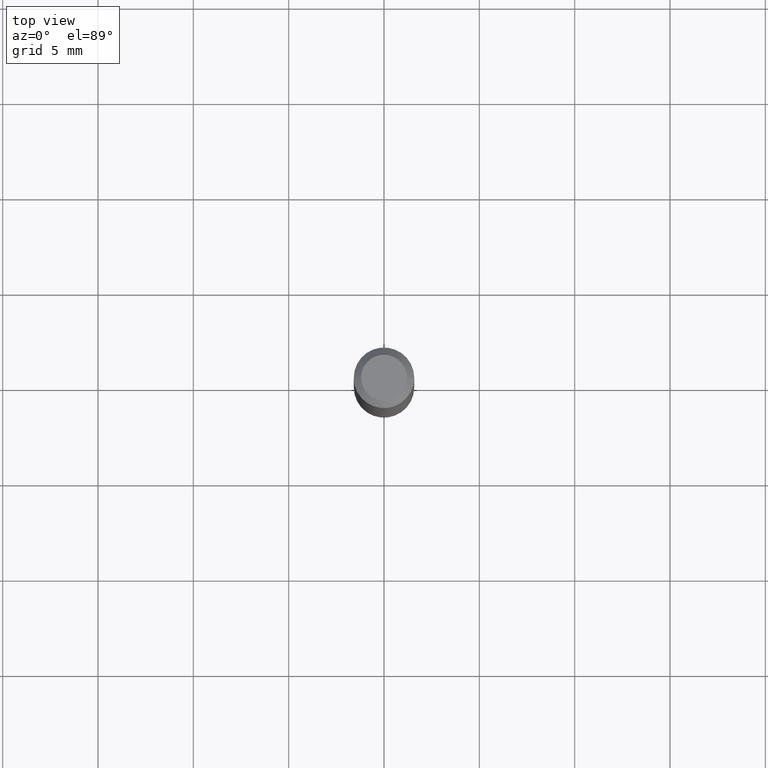
[diagram: clean part render]
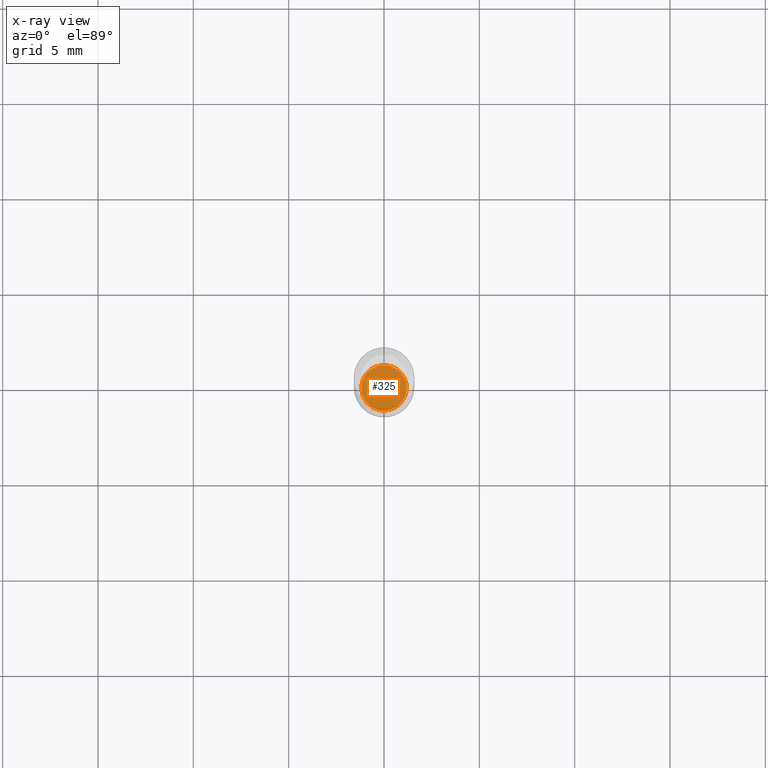
[diagram: x-ray — body ghosted, one internal face saturated and labeled with its STEP entity id]
A machine part, top view, then the same camera in x-ray: the body is ghosted and one INTERNAL B-rep face — a face not visible from any outside direction — is saturated and labeled: STEP entity #325.
In plain terms, the highlighted planar face has unit normal (-0, 0, 1).
Its self-contained STEP definition (entity closure, byte-faithful):
#6 = VERTEX_POINT ( 'NONE', #428 ) ;
#69 = CARTESIAN_POINT ( 'NONE',  ( 2.971244599514941458E-29, -4.242149826694422488E-15, -1.215000000000000080 ) ) ;
#75 = DIRECTION ( 'NONE',  ( 1.000000000000000000, -6.982962677686257244E-15, 0.000000000000000000 ) ) ;
#119 = AXIS2_PLACEMENT_3D ( 'NONE', #69, #169, #134 ) ;
#134 = DIRECTION ( 'NONE',  ( 1.000000000000000000, -6.982962677686265922E-15, 4.876176775795935793E-29 ) ) ;
#154 = EDGE_CURVE ( 'NONE', #424, #6, #506, .T. ) ;
#169 = DIRECTION ( 'NONE',  ( -2.438088387897960049E-29, 3.491481338843145188E-15, 1.000000000000000000 ) ) ;
#195 = AXIS2_PLACEMENT_3D ( 'NONE', #504, #378, #75 ) ;
#243 = CARTESIAN_POINT ( 'NONE',  ( 2.971244599514941458E-29, -4.242149826694422488E-15, -1.215000000000000080 ) ) ;
#284 = DIRECTION ( 'NONE',  ( 1.000000000000000000, -6.982962677686257244E-15, 0.000000000000000000 ) ) ;
#305 = ORIENTED_EDGE ( 'NONE', *, *, #154, .F. ) ;
#325 = ADVANCED_FACE ( 'NONE', ( #418 ), #453, .F. ) ;
#356 = CARTESIAN_POINT ( 'NONE',  ( -0.04699999999999995154, -3.905545513713064692E-15, -1.215000000000000080 ) ) ;
#357 = CIRCLE ( 'NONE', #195, 0.04699999999999995154 ) ;
#378 = DIRECTION ( 'NONE',  ( -2.445468806185136597E-29, 3.491481338843145583E-15, 1.000000000000000000 ) ) ;
#380 = ORIENTED_EDGE ( 'NONE', *, *, #509, .F. ) ;
#395 = DIRECTION ( 'NONE',  ( -2.445468806185136597E-29, 3.491481338843145583E-15, 1.000000000000000000 ) ) ;
#418 = FACE_OUTER_BOUND ( 'NONE', #496, .T. ) ;
#424 = VERTEX_POINT ( 'NONE', #356 ) ;
#428 = CARTESIAN_POINT ( 'NONE',  ( 0.04699999999999995154, -4.570349072545676203E-15, -1.215000000000000080 ) ) ;
#453 = PLANE ( 'NONE',  #119 ) ;
#479 = AXIS2_PLACEMENT_3D ( 'NONE', #243, #395, #284 ) ;
#496 = EDGE_LOOP ( 'NONE', ( #380, #305 ) ) ;
#504 = CARTESIAN_POINT ( 'NONE',  ( 2.971244599514941458E-29, -4.242149826694422488E-15, -1.215000000000000080 ) ) ;
#506 = CIRCLE ( 'NONE', #479, 0.04699999999999995154 ) ;
#509 = EDGE_CURVE ( 'NONE', #6, #424, #357, .T. ) ;